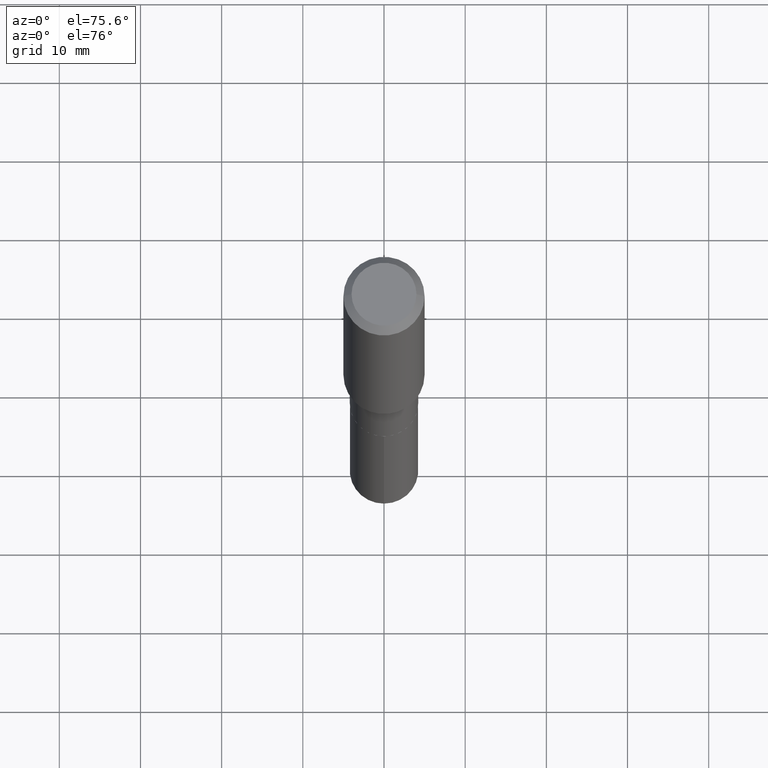
[diagram: clean part render]
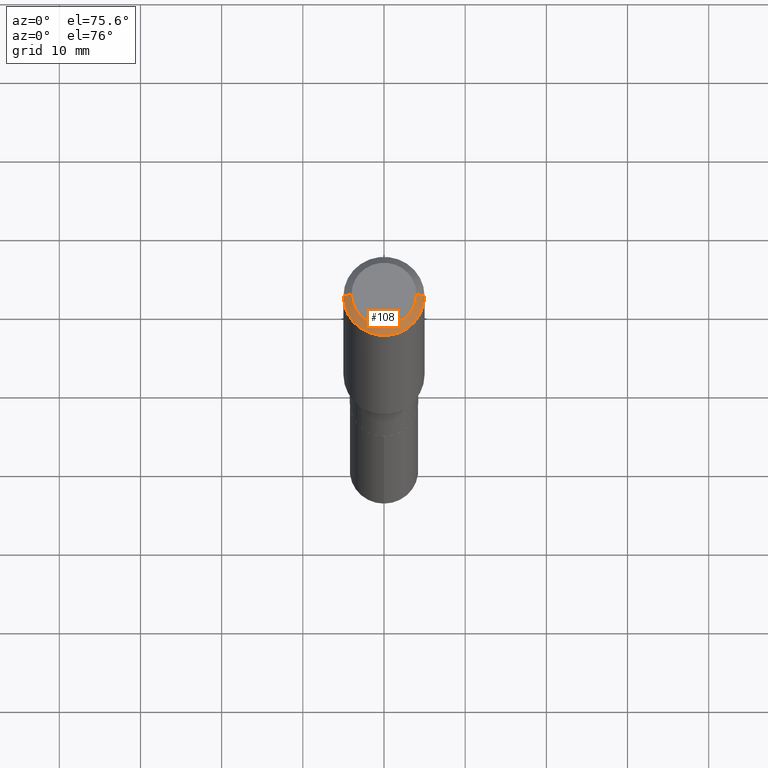
[diagram: same view with one face highlighted and labeled with its STEP entity id]
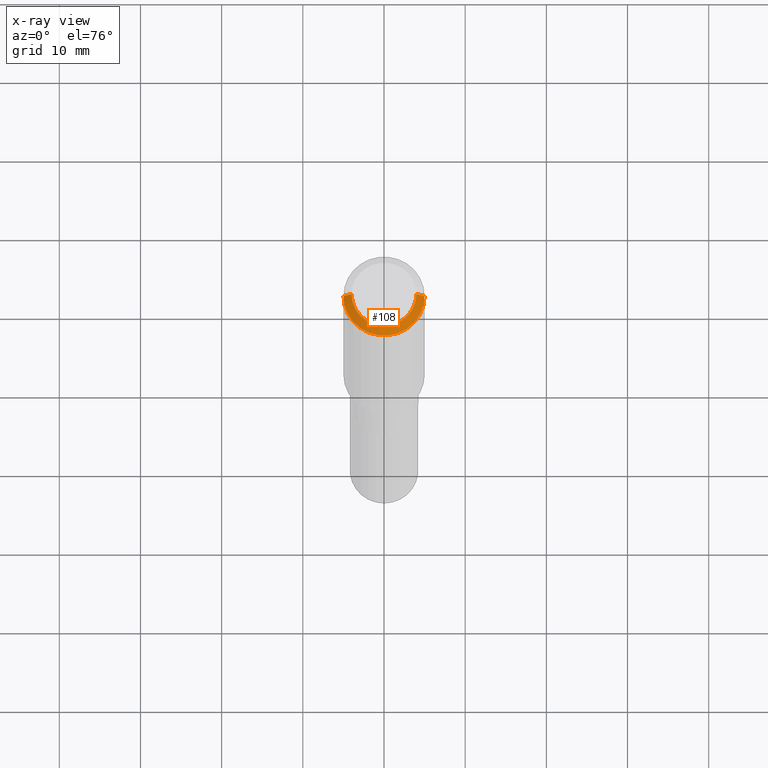
[diagram: x-ray of the same camera — body ghosted, the highlighted face saturated]
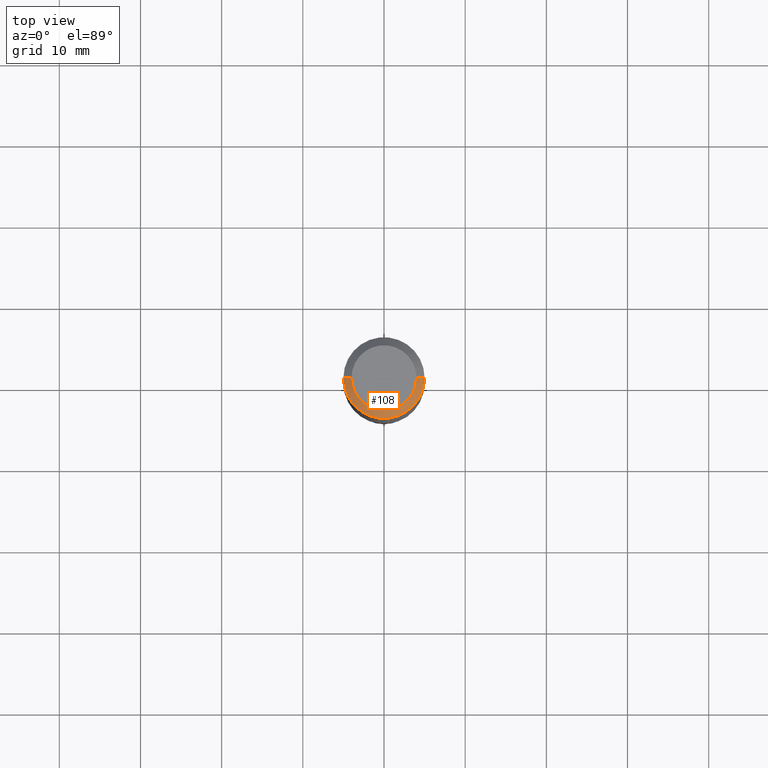
[diagram: same view with one face highlighted and labeled with its STEP entity id]
A machine part, auxiliary view. The second image highlights one B-rep face of the part: STEP entity #108.
The next image is the same camera in x-ray: the body ghosted, the highlighted face saturated — about 0% of this face is hidden behind the body in this view.
A second angle (top view) of the same face is appended — the face is thin or edge-on in the first view.
In plain terms, the highlighted conical surface has half-angle 45 deg.
Its self-contained STEP definition (entity closure, byte-faithful):
#33 = CARTESIAN_POINT ( 'NONE',  ( -9.427742298522567634E-47, 1.346031739168368355E-32, 3.855188123715870730E-18 ) ) ;
#34 = DIRECTION ( 'NONE',  ( -2.445468806185136597E-29, 3.491481338843145583E-15, 1.000000000000000000 ) ) ;
#37 = CARTESIAN_POINT ( 'NONE',  ( -0.1968500000000000527, 1.237136582792286422E-15, -0.03937000000000027283 ) ) ;
#41 = CARTESIAN_POINT ( 'NONE',  ( 9.627810689950950651E-31, -1.374596203102555808E-16, -0.03937000000000027283 ) ) ;
#62 = CARTESIAN_POINT ( 'NONE',  ( -0.1968500000000000527, -1.415814646711089373E-15, -0.03937000000000027283 ) ) ;
#65 = VECTOR ( 'NONE', #237, 39.37007874015748143 ) ;
#70 = EDGE_CURVE ( 'NONE', #292, #109, #166, .T. ) ;
#75 = DIRECTION ( 'NONE',  ( -0.7071067811865454633, 2.468850131082235367E-15, -0.7071067811865495711 ) ) ;
#80 = LINE ( 'NONE', #124, #65 ) ;
#82 = ORIENTED_EDGE ( 'NONE', *, *, #70, .T. ) ;
#88 = CARTESIAN_POINT ( 'NONE',  ( 0.1968500000000000527, -1.512055823412797583E-15, -0.03937000000000027283 ) ) ;
#108 = ADVANCED_FACE ( 'NONE', ( #419 ), #335, .T. ) ;
#109 = VERTEX_POINT ( 'NONE', #62 ) ;
#123 = ORIENTED_EDGE ( 'NONE', *, *, #291, .F. ) ;
#124 = CARTESIAN_POINT ( 'NONE',  ( 0.1968500000000000527, -1.487948651171581996E-15, -0.03937000000000027283 ) ) ;
#134 = ORIENTED_EDGE ( 'NONE', *, *, #473, .F. ) ;
#157 = CARTESIAN_POINT ( 'NONE',  ( -0.1574800000000000089, 1.168406772637159815E-15, 3.855188123707939751E-18 ) ) ;
#166 = LINE ( 'NONE', #37, #269 ) ;
#196 = DIRECTION ( 'NONE',  ( 1.000000000000000000, -6.982962677686265922E-15, 4.876223630392693006E-29 ) ) ;
#199 = AXIS2_PLACEMENT_3D ( 'NONE', #41, #452, #200 ) ;
#200 = DIRECTION ( 'NONE',  ( -1.000000000000000000, 6.982962677686266711E-15, 0.000000000000000000 ) ) ;
#237 = DIRECTION ( 'NONE',  ( 0.7071067811865454633, -7.319954787623248157E-15, -0.7071067811865495711 ) ) ;
#269 = VECTOR ( 'NONE', #75, 39.37007874015748143 ) ;
#278 = VERTEX_POINT ( 'NONE', #386 ) ;
#291 = EDGE_CURVE ( 'NONE', #292, #278, #325, .T. ) ;
#292 = VERTEX_POINT ( 'NONE', #157 ) ;
#315 = ORIENTED_EDGE ( 'NONE', *, *, #326, .T. ) ;
#325 = CIRCLE ( 'NONE', #336, 0.1574800000000000089 ) ;
#326 = EDGE_CURVE ( 'NONE', #109, #350, #408, .T. ) ;
#335 = CONICAL_SURFACE ( 'NONE', #199, 0.1968500000000000527, 0.7853981633974453924 ) ;
#336 = AXIS2_PLACEMENT_3D ( 'NONE', #33, #351, #196 ) ;
#350 = VERTEX_POINT ( 'NONE', #88 ) ;
#351 = DIRECTION ( 'NONE',  ( -2.445468806185136597E-29, 3.491481338843145583E-15, 1.000000000000000000 ) ) ;
#356 = DIRECTION ( 'NONE',  ( 1.000000000000000000, -6.982962677686266711E-15, 0.000000000000000000 ) ) ;
#377 = EDGE_LOOP ( 'NONE', ( #134, #123, #82, #315 ) ) ;
#381 = CARTESIAN_POINT ( 'NONE',  ( 9.627810689950950651E-31, -1.374596203102555808E-16, -0.03937000000000027283 ) ) ;
#386 = CARTESIAN_POINT ( 'NONE',  ( 0.1574800000000000089, -1.284169937930321386E-15, 3.855188123724205385E-18 ) ) ;
#408 = CIRCLE ( 'NONE', #468, 0.1968500000000000527 ) ;
#419 = FACE_OUTER_BOUND ( 'NONE', #377, .T. ) ;
#452 = DIRECTION ( 'NONE',  ( 2.445468806185136597E-29, -3.491481338843145583E-15, -1.000000000000000000 ) ) ;
#468 = AXIS2_PLACEMENT_3D ( 'NONE', #381, #34, #356 ) ;
#473 = EDGE_CURVE ( 'NONE', #278, #350, #80, .T. ) ;